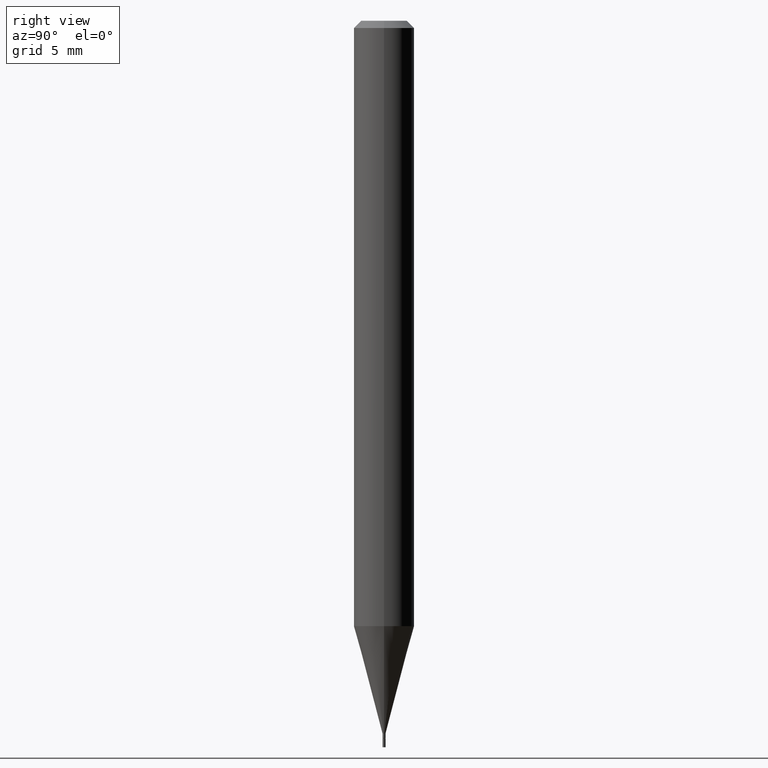
[diagram: clean part render]
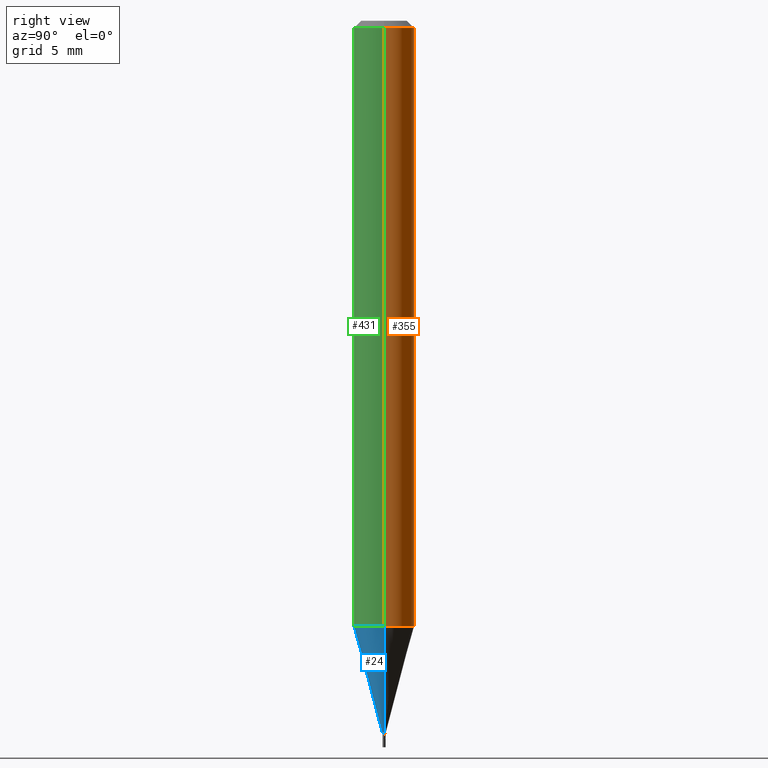
[diagram: same view with three faces highlighted in distinct colors, each labeled with its STEP entity id]
A machine part, right view with three faces highlighted in distinct colors.
Their STEP definitions:

[orange] entity #355 — the highlighted cylindrical surface (edge-blend (fillet) strip) has radius 1.5875 mm, axis along (-0, 0, 1).
#14 = CARTESIAN_POINT ( 'NONE',  ( 0.000000000000000000, 0.000000000000000000, 0.000000000000000000 ) ) ;
#23 = AXIS2_PLACEMENT_3D ( 'NONE', #14, #125, #164 ) ;
#42 = AXIS2_PLACEMENT_3D ( 'NONE', #115, #261, #45 ) ;
#45 = DIRECTION ( 'NONE',  ( 1.000000000000000000, -6.982962677686266711E-15, 0.000000000000000000 ) ) ;
#55 = ORIENTED_EDGE ( 'NONE', *, *, #453, .T. ) ;
#80 = AXIS2_PLACEMENT_3D ( 'NONE', #363, #324, #396 ) ;
#89 = VERTEX_POINT ( 'NONE', #211 ) ;
#115 = CARTESIAN_POINT ( 'NONE',  ( 3.668203209277705088E-31, -5.237222008264718399E-17, -0.01499999999999999944 ) ) ;
#118 = VECTOR ( 'NONE', #292, 39.37007874015748143 ) ;
#125 = DIRECTION ( 'NONE',  ( -2.445468806185136597E-29, 3.491481338843145583E-15, 1.000000000000000000 ) ) ;
#126 = ORIENTED_EDGE ( 'NONE', *, *, #138, .F. ) ;
#128 = CARTESIAN_POINT ( 'NONE',  ( 0.06250000000000000000, -4.800587745993150425E-15, -1.249942976949652174 ) ) ;
#130 = EDGE_LOOP ( 'NONE', ( #265, #55, #375, #126 ) ) ;
#138 = EDGE_CURVE ( 'NONE', #409, #89, #147, .T. ) ;
#143 = CIRCLE ( 'NONE', #42, 0.06250000000000000000 ) ;
#147 = LINE ( 'NONE', #383, #118 ) ;
#164 = DIRECTION ( 'NONE',  ( 1.000000000000000000, -6.982962677686266711E-15, 4.876176775795935793E-29 ) ) ;
#165 = VECTOR ( 'NONE', #274, 39.37007874015748143 ) ;
#211 = CARTESIAN_POINT ( 'NONE',  ( 0.06250000000000000000, -4.888073874380388472E-16, -0.01499999999999999944 ) ) ;
#212 = EDGE_CURVE ( 'NONE', #409, #299, #259, .T. ) ;
#226 = EDGE_CURVE ( 'NONE', #89, #305, #143, .T. ) ;
#259 = CIRCLE ( 'NONE', #80, 0.06250000000000000000 ) ;
#261 = DIRECTION ( 'NONE',  ( -2.445468806185136597E-29, 3.491481338843145583E-15, 1.000000000000000000 ) ) ;
#265 = ORIENTED_EDGE ( 'NONE', *, *, #212, .T. ) ;
#274 = DIRECTION ( 'NONE',  ( -2.445468806185136877E-29, 3.491481338843145188E-15, 1.000000000000000000 ) ) ;
#292 = DIRECTION ( 'NONE',  ( -2.445468806185136877E-29, 3.491481338843145188E-15, 1.000000000000000000 ) ) ;
#299 = VERTEX_POINT ( 'NONE', #395 ) ;
#305 = VERTEX_POINT ( 'NONE', #326 ) ;
#307 = LINE ( 'NONE', #444, #165 ) ;
#324 = DIRECTION ( 'NONE',  ( -2.445468806185136597E-29, 3.491481338843145583E-15, 1.000000000000000000 ) ) ;
#326 = CARTESIAN_POINT ( 'NONE',  ( -0.06250000000000000000, -1.764173189510140301E-15, -0.01499999999999999944 ) ) ;
#333 = FACE_OUTER_BOUND ( 'NONE', #130, .T. ) ;
#336 = CYLINDRICAL_SURFACE ( 'NONE', #23, 0.06250000000000000000 ) ;
#355 = ADVANCED_FACE ( 'NONE', ( #333 ), #336, .T. ) ;
#363 = CARTESIAN_POINT ( 'NONE',  ( 3.056696559640561437E-29, -4.364152578637758755E-15, -1.249942976949652174 ) ) ;
#375 = ORIENTED_EDGE ( 'NONE', *, *, #226, .F. ) ;
#383 = CARTESIAN_POINT ( 'NONE',  ( 0.06250000000000000000, -4.364351673553916694E-16, 3.047610484872459871E-30 ) ) ;
#395 = CARTESIAN_POINT ( 'NONE',  ( -0.06250000000000000000, -3.920063368787695350E-15, -1.249942976949652174 ) ) ;
#396 = DIRECTION ( 'NONE',  ( 1.000000000000000000, -6.982962677686270655E-15, 0.000000000000000000 ) ) ;
#409 = VERTEX_POINT ( 'NONE', #128 ) ;
#444 = CARTESIAN_POINT ( 'NONE',  ( -0.06250000000000000000, 4.440892098500626162E-16, -3.074334431409316114E-30 ) ) ;
#453 = EDGE_CURVE ( 'NONE', #299, #305, #307, .T. ) ;

[blue] entity #24 — the highlighted conical surface has half-angle 15 deg.
#1 = EDGE_LOOP ( 'NONE', ( #405, #168, #66, #163 ) ) ;
#8 = LINE ( 'NONE', #77, #256 ) ;
#24 = ADVANCED_FACE ( 'NONE', ( #455 ), #362, .T. ) ;
#48 = AXIS2_PLACEMENT_3D ( 'NONE', #221, #425, #283 ) ;
#57 = CIRCLE ( 'NONE', #377, 0.002999999999999922000 ) ;
#66 = ORIENTED_EDGE ( 'NONE', *, *, #275, .T. ) ;
#77 = CARTESIAN_POINT ( 'NONE',  ( 0.002999999999999922000, -5.160409418810168864E-15, -1.471999999999999975 ) ) ;
#95 = EDGE_CURVE ( 'NONE', #299, #409, #294, .T. ) ;
#128 = CARTESIAN_POINT ( 'NONE',  ( 0.06250000000000000000, -4.800587745993150425E-15, -1.249942976949652174 ) ) ;
#134 = EDGE_CURVE ( 'NONE', #334, #205, #57, .T. ) ;
#163 = ORIENTED_EDGE ( 'NONE', *, *, #95, .F. ) ;
#168 = ORIENTED_EDGE ( 'NONE', *, *, #134, .T. ) ;
#170 = AXIS2_PLACEMENT_3D ( 'NONE', #242, #354, #287 ) ;
#182 = CARTESIAN_POINT ( 'NONE',  ( 3.599730082704520905E-29, -5.139460530777110821E-15, -1.471999999999999975 ) ) ;
#183 = EDGE_CURVE ( 'NONE', #334, #299, #427, .T. ) ;
#191 = CARTESIAN_POINT ( 'NONE',  ( -0.002999999999999922000, -5.118144248704308586E-15, -1.471999999999999975 ) ) ;
#205 = VERTEX_POINT ( 'NONE', #364 ) ;
#221 = CARTESIAN_POINT ( 'NONE',  ( 3.056696559640561437E-29, -4.364152578637758755E-15, -1.249942976949652174 ) ) ;
#242 = CARTESIAN_POINT ( 'NONE',  ( 3.599730082704520905E-29, -5.139460530777110821E-15, -1.471999999999999975 ) ) ;
#255 = DIRECTION ( 'NONE',  ( 0.2588190451025213501, 1.565188264969621968E-15, 0.9659258262890682012 ) ) ;
#256 = VECTOR ( 'NONE', #255, 39.37007874015747433 ) ;
#271 = CARTESIAN_POINT ( 'NONE',  ( -0.002999999999999922000, -4.519103808746002757E-15, -1.471999999999999975 ) ) ;
#275 = EDGE_CURVE ( 'NONE', #205, #409, #8, .T. ) ;
#283 = DIRECTION ( 'NONE',  ( 1.000000000000000000, -6.982962677686270655E-15, 0.000000000000000000 ) ) ;
#287 = DIRECTION ( 'NONE',  ( 1.000000000000000000, -6.982962677686190980E-15, 0.000000000000000000 ) ) ;
#294 = CIRCLE ( 'NONE', #48, 0.06250000000000000000 ) ;
#299 = VERTEX_POINT ( 'NONE', #395 ) ;
#323 = DIRECTION ( 'NONE',  ( -2.445468806185136597E-29, 3.491481338843145583E-15, 1.000000000000000000 ) ) ;
#334 = VERTEX_POINT ( 'NONE', #271 ) ;
#354 = DIRECTION ( 'NONE',  ( -2.445468806185136597E-29, 3.491481338843145583E-15, 1.000000000000000000 ) ) ;
#362 = CONICAL_SURFACE ( 'NONE', #170, 0.002999999999999922000, 0.2617993877991500740 ) ;
#364 = CARTESIAN_POINT ( 'NONE',  ( 0.002999999999999922000, -5.160409418810168864E-15, -1.471999999999999975 ) ) ;
#366 = DIRECTION ( 'NONE',  ( -0.2588190451025213501, 5.211531920934551042E-15, 0.9659258262890682012 ) ) ;
#377 = AXIS2_PLACEMENT_3D ( 'NONE', #182, #323, #466 ) ;
#395 = CARTESIAN_POINT ( 'NONE',  ( -0.06250000000000000000, -3.920063368787695350E-15, -1.249942976949652174 ) ) ;
#405 = ORIENTED_EDGE ( 'NONE', *, *, #183, .F. ) ;
#409 = VERTEX_POINT ( 'NONE', #128 ) ;
#425 = DIRECTION ( 'NONE',  ( -2.445468806185136597E-29, 3.491481338843145583E-15, 1.000000000000000000 ) ) ;
#427 = LINE ( 'NONE', #191, #460 ) ;
#455 = FACE_OUTER_BOUND ( 'NONE', #1, .T. ) ;
#460 = VECTOR ( 'NONE', #366, 39.37007874015747433 ) ;
#466 = DIRECTION ( 'NONE',  ( 1.000000000000000000, -6.982962677686190980E-15, 0.000000000000000000 ) ) ;

[green] entity #431 — the highlighted cylindrical surface (edge-blend (fillet) strip) has radius 1.5875 mm, axis along (-0, 0, 1).
#25 = EDGE_LOOP ( 'NONE', ( #302, #61, #341, #94 ) ) ;
#48 = AXIS2_PLACEMENT_3D ( 'NONE', #221, #425, #283 ) ;
#50 = DIRECTION ( 'NONE',  ( 1.000000000000000000, -6.982962677686266711E-15, 0.000000000000000000 ) ) ;
#56 = DIRECTION ( 'NONE',  ( 1.000000000000000000, -6.982962677686266711E-15, 4.876176775795935793E-29 ) ) ;
#61 = ORIENTED_EDGE ( 'NONE', *, *, #95, .T. ) ;
#85 = DIRECTION ( 'NONE',  ( -2.445468806185136597E-29, 3.491481338843145583E-15, 1.000000000000000000 ) ) ;
#89 = VERTEX_POINT ( 'NONE', #211 ) ;
#94 = ORIENTED_EDGE ( 'NONE', *, *, #385, .F. ) ;
#95 = EDGE_CURVE ( 'NONE', #299, #409, #294, .T. ) ;
#118 = VECTOR ( 'NONE', #292, 39.37007874015748143 ) ;
#128 = CARTESIAN_POINT ( 'NONE',  ( 0.06250000000000000000, -4.800587745993150425E-15, -1.249942976949652174 ) ) ;
#131 = CARTESIAN_POINT ( 'NONE',  ( 3.668203209277705088E-31, -5.237222008264718399E-17, -0.01499999999999999944 ) ) ;
#138 = EDGE_CURVE ( 'NONE', #409, #89, #147, .T. ) ;
#147 = LINE ( 'NONE', #383, #118 ) ;
#165 = VECTOR ( 'NONE', #274, 39.37007874015748143 ) ;
#172 = AXIS2_PLACEMENT_3D ( 'NONE', #131, #85, #50 ) ;
#204 = DIRECTION ( 'NONE',  ( -2.445468806185136597E-29, 3.491481338843145583E-15, 1.000000000000000000 ) ) ;
#211 = CARTESIAN_POINT ( 'NONE',  ( 0.06250000000000000000, -4.888073874380388472E-16, -0.01499999999999999944 ) ) ;
#221 = CARTESIAN_POINT ( 'NONE',  ( 3.056696559640561437E-29, -4.364152578637758755E-15, -1.249942976949652174 ) ) ;
#274 = DIRECTION ( 'NONE',  ( -2.445468806185136877E-29, 3.491481338843145188E-15, 1.000000000000000000 ) ) ;
#283 = DIRECTION ( 'NONE',  ( 1.000000000000000000, -6.982962677686270655E-15, 0.000000000000000000 ) ) ;
#292 = DIRECTION ( 'NONE',  ( -2.445468806185136877E-29, 3.491481338843145188E-15, 1.000000000000000000 ) ) ;
#294 = CIRCLE ( 'NONE', #48, 0.06250000000000000000 ) ;
#299 = VERTEX_POINT ( 'NONE', #395 ) ;
#302 = ORIENTED_EDGE ( 'NONE', *, *, #453, .F. ) ;
#305 = VERTEX_POINT ( 'NONE', #326 ) ;
#307 = LINE ( 'NONE', #444, #165 ) ;
#326 = CARTESIAN_POINT ( 'NONE',  ( -0.06250000000000000000, -1.764173189510140301E-15, -0.01499999999999999944 ) ) ;
#330 = CYLINDRICAL_SURFACE ( 'NONE', #365, 0.06250000000000000000 ) ;
#341 = ORIENTED_EDGE ( 'NONE', *, *, #138, .T. ) ;
#365 = AXIS2_PLACEMENT_3D ( 'NONE', #374, #204, #56 ) ;
#374 = CARTESIAN_POINT ( 'NONE',  ( 0.000000000000000000, 0.000000000000000000, 0.000000000000000000 ) ) ;
#381 = CIRCLE ( 'NONE', #172, 0.06250000000000000000 ) ;
#383 = CARTESIAN_POINT ( 'NONE',  ( 0.06250000000000000000, -4.364351673553916694E-16, 3.047610484872459871E-30 ) ) ;
#385 = EDGE_CURVE ( 'NONE', #305, #89, #381, .T. ) ;
#395 = CARTESIAN_POINT ( 'NONE',  ( -0.06250000000000000000, -3.920063368787695350E-15, -1.249942976949652174 ) ) ;
#403 = FACE_OUTER_BOUND ( 'NONE', #25, .T. ) ;
#409 = VERTEX_POINT ( 'NONE', #128 ) ;
#425 = DIRECTION ( 'NONE',  ( -2.445468806185136597E-29, 3.491481338843145583E-15, 1.000000000000000000 ) ) ;
#431 = ADVANCED_FACE ( 'NONE', ( #403 ), #330, .T. ) ;
#444 = CARTESIAN_POINT ( 'NONE',  ( -0.06250000000000000000, 4.440892098500626162E-16, -3.074334431409316114E-30 ) ) ;
#453 = EDGE_CURVE ( 'NONE', #299, #305, #307, .T. ) ;